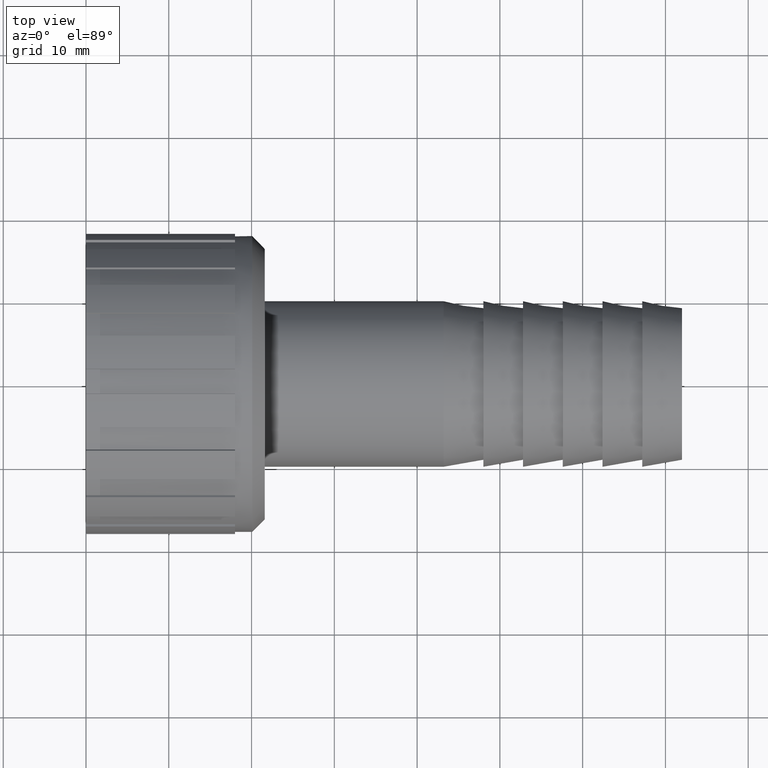
[diagram: clean part render]
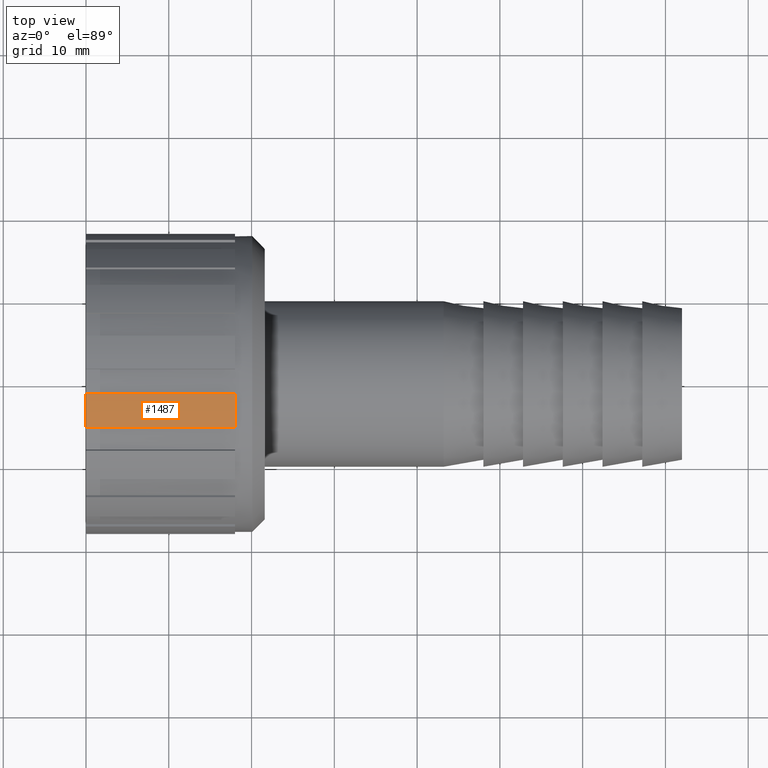
[diagram: same view with one face highlighted and labeled with its STEP entity id]
A machine part, top view. The second image highlights one B-rep face of the part: STEP entity #1487.
In plain terms, the highlighted cylindrical surface (partial cylindrical patch) has radius 18.1746 mm, axis along (-1, 0, 0).
Its self-contained STEP definition (entity closure, byte-faithful):
#36=CYLINDRICAL_SURFACE('',#1638,18.1746);
#63=CIRCLE('',#1544,18.1746);
#124=CIRCLE('',#1620,18.1746);
#206=FACE_OUTER_BOUND('',#291,.T.);
#291=EDGE_LOOP('',(#1252,#1253,#1254,#1255));
#336=LINE('',#2152,#464);
#458=LINE('',#2525,#586);
#464=VECTOR('',#1686,18.);
#586=VECTOR('',#2060,18.);
#590=VERTEX_POINT('',#2146);
#592=VERTEX_POINT('',#2150);
#709=VERTEX_POINT('',#2416);
#717=VERTEX_POINT('',#2503);
#739=EDGE_CURVE('',#590,#592,#336,.T.);
#857=EDGE_CURVE('',#590,#709,#63,.T.);
#922=EDGE_CURVE('',#592,#717,#124,.T.);
#926=EDGE_CURVE('',#717,#709,#458,.T.);
#1252=ORIENTED_EDGE('',*,*,#739,.T.);
#1253=ORIENTED_EDGE('',*,*,#922,.T.);
#1254=ORIENTED_EDGE('',*,*,#926,.T.);
#1255=ORIENTED_EDGE('',*,*,#857,.F.);
#1487=ADVANCED_FACE('',(#206),#36,.T.);
#1544=AXIS2_PLACEMENT_3D('',#2417,#1865,#1866);
#1620=AXIS2_PLACEMENT_3D('',#2505,#2021,#2022);
#1638=AXIS2_PLACEMENT_3D('',#2524,#2058,#2059);
#1686=DIRECTION('',(1.,0.,0.));
#1865=DIRECTION('center_axis',(-1.,0.,0.));
#1866=DIRECTION('ref_axis',(0.,0.,1.));
#2021=DIRECTION('center_axis',(-1.,0.,0.));
#2022=DIRECTION('ref_axis',(0.,0.,1.));
#2058=DIRECTION('center_axis',(-1.,0.,0.));
#2059=DIRECTION('ref_axis',(0.,-1.,0.));
#2060=DIRECTION('',(-1.,0.,0.));
#2146=CARTESIAN_POINT('',(0.,-5.53166477473964,17.312329998585));
#2150=CARTESIAN_POINT('',(18.,-5.53166477473964,17.3123299985849));
#2152=CARTESIAN_POINT('',(9.,-5.53166477473964,17.312329998585));
#2416=CARTESIAN_POINT('',(0.,-1.51455,18.1113838084642));
#2417=CARTESIAN_POINT('Origin',(0.,0.,0.));
#2503=CARTESIAN_POINT('',(18.,-1.51455,18.1113838084642));
#2505=CARTESIAN_POINT('Origin',(18.,0.,0.));
#2524=CARTESIAN_POINT('Origin',(9.,0.,0.));
#2525=CARTESIAN_POINT('',(9.,-1.51455,18.1113838084642));